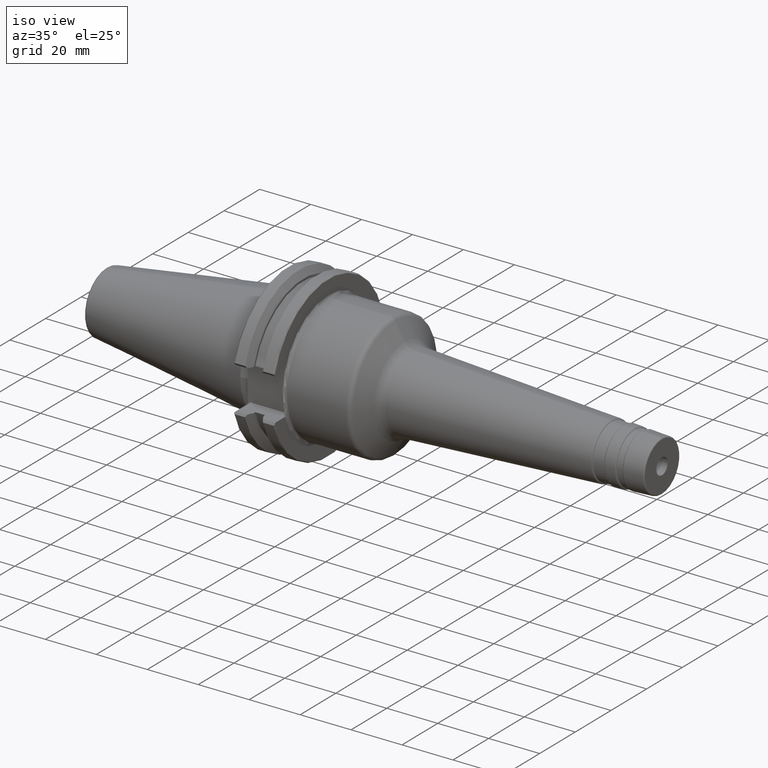
[diagram: clean part render]
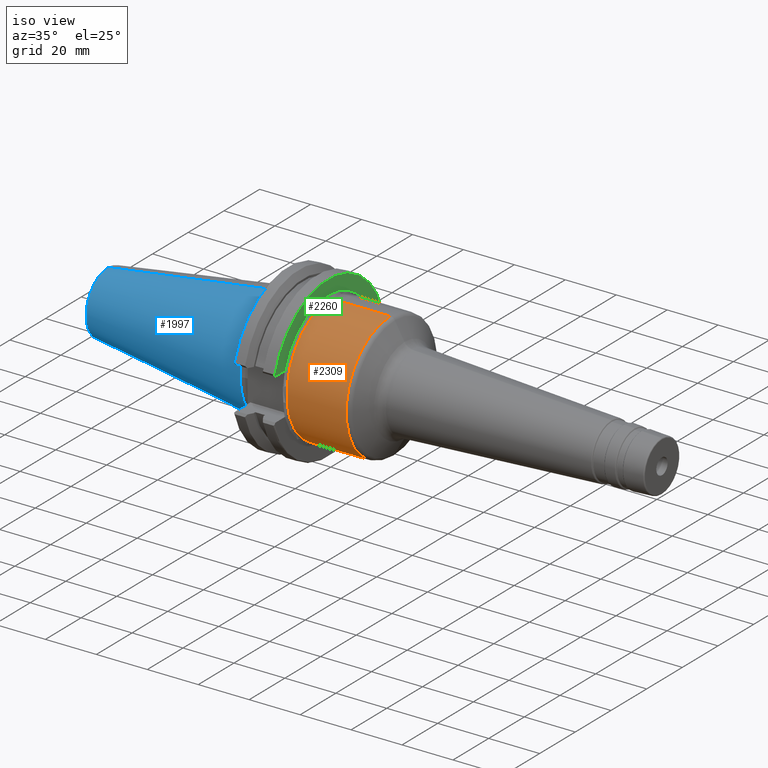
[diagram: same view with three faces highlighted in distinct colors, each labeled with its STEP entity id]
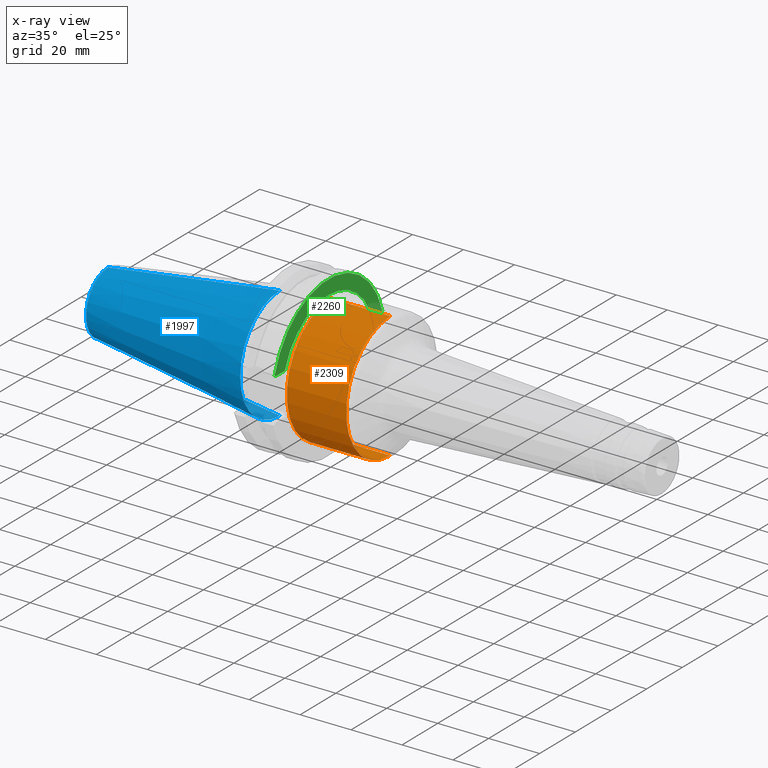
[diagram: x-ray of the same camera — body ghosted, the three highlighted faces saturated]
A machine part, iso view with three faces highlighted in distinct colors.
The next image is the same camera in x-ray (body ghosted, the three faces saturated) — at least one of them is partly hidden behind the body in this view.
Their STEP definitions:

[orange] entity #2309 — the highlighted cylindrical surface (partial cylindrical patch) has radius 24.75 mm, axis along (1, 0, 0).
#240=CARTESIAN_POINT('',(2.0075E1,0.E0,0.E0));
#241=DIRECTION('',(-1.E0,0.E0,0.E0));
#242=DIRECTION('',(0.E0,0.E0,-1.E0));
#243=AXIS2_PLACEMENT_3D('',#240,#241,#242);
#250=DIRECTION('',(-1.E0,0.E0,0.E0));
#251=VECTOR('',#250,2.330514753874E1);
#252=CARTESIAN_POINT('',(4.338014753874E1,0.E0,-2.475E1));
#253=LINE('',#252,#251);
#254=DIRECTION('',(-1.E0,0.E0,0.E0));
#255=VECTOR('',#254,2.330514753874E1);
#256=CARTESIAN_POINT('',(4.338014753874E1,0.E0,2.475E1));
#257=LINE('',#256,#255);
#258=CARTESIAN_POINT('',(4.338014753874E1,0.E0,0.E0));
#259=DIRECTION('',(-1.E0,0.E0,0.E0));
#260=DIRECTION('',(0.E0,0.E0,-1.E0));
#261=AXIS2_PLACEMENT_3D('',#258,#259,#260);
#1816=CARTESIAN_POINT('',(4.338014753874E1,0.E0,-2.475E1));
#1817=VERTEX_POINT('',#1816);
#1818=CARTESIAN_POINT('',(2.0075E1,0.E0,-2.475E1));
#1819=VERTEX_POINT('',#1818);
#1872=CARTESIAN_POINT('',(4.338014753874E1,0.E0,2.475E1));
#1873=VERTEX_POINT('',#1872);
#1874=CARTESIAN_POINT('',(2.0075E1,0.E0,2.475E1));
#1875=VERTEX_POINT('',#1874);
#2295=CARTESIAN_POINT('',(1.25275E1,0.E0,0.E0));
#2296=DIRECTION('',(1.E0,0.E0,0.E0));
#2297=DIRECTION('',(0.E0,0.E0,1.E0));
#2298=AXIS2_PLACEMENT_3D('',#2295,#2296,#2297);
#2299=CYLINDRICAL_SURFACE('',#2298,2.475E1);
#2301=ORIENTED_EDGE('',*,*,#2300,.T.);
#2302=ORIENTED_EDGE('',*,*,#2286,.T.);
#2304=ORIENTED_EDGE('',*,*,#2303,.F.);
#2306=ORIENTED_EDGE('',*,*,#2305,.F.);
#2307=EDGE_LOOP('',(#2301,#2302,#2304,#2306));
#2308=FACE_OUTER_BOUND('',#2307,.F.);
#2309=ADVANCED_FACE('',(#2308),#2299,.T.);
#244=CIRCLE('',#243,2.475E1);
#262=CIRCLE('',#261,2.475E1);
#2286=EDGE_CURVE('',#1819,#1875,#244,.T.);
#2300=EDGE_CURVE('',#1817,#1819,#253,.T.);
#2303=EDGE_CURVE('',#1873,#1875,#257,.T.);
#2305=EDGE_CURVE('',#1817,#1873,#262,.T.);

[blue] entity #1997 — the highlighted conical surface has half-angle 8.297 deg.
#47=CARTESIAN_POINT('',(-6.739430689359E1,0.E0,0.E0));
#48=DIRECTION('',(-1.E0,0.E0,0.E0));
#49=DIRECTION('',(0.E0,0.E0,-1.E0));
#50=AXIS2_PLACEMENT_3D('',#47,#48,#49);
#52=DIRECTION('',(-9.895329809873E-1,-1.311327178365E-12,-1.443068935927E-1));
#53=VECTOR('',#52,6.810718610546E1);
#54=CARTESIAN_POINT('',(0.E0,0.E0,2.2225E1));
#55=LINE('',#54,#53);
#56=CARTESIAN_POINT('',(2.557953848736E-13,0.E0,0.E0));
#57=DIRECTION('',(1.E0,0.E0,0.E0));
#58=DIRECTION('',(0.E0,0.E0,1.E0));
#59=AXIS2_PLACEMENT_3D('',#56,#57,#58);
#61=CARTESIAN_POINT('',(-2.842170943040E-14,0.E0,0.E0));
#62=DIRECTION('',(1.E0,0.E0,0.E0));
#63=DIRECTION('',(0.E0,-1.E0,0.E0));
#64=AXIS2_PLACEMENT_3D('',#61,#62,#63);
#66=DIRECTION('',(-9.895329809873E-1,1.311286176267E-12,1.443068935927E-1));
#67=VECTOR('',#66,6.810718610546E1);
#68=CARTESIAN_POINT('',(0.E0,0.E0,-2.2225E1));
#69=LINE('',#68,#67);
#1620=CARTESIAN_POINT('',(-6.739430689359E1,0.E0,-1.239666354178E1));
#1621=CARTESIAN_POINT('',(-6.739430689359E1,0.E0,1.239666354178E1));
#1622=VERTEX_POINT('',#1620);
#1623=VERTEX_POINT('',#1621);
#1636=CARTESIAN_POINT('',(0.E0,-2.2225E1,-1.633863832385E-8));
#1637=VERTEX_POINT('',#1636);
#1640=CARTESIAN_POINT('',(2.557953848736E-13,0.E0,2.2225E1));
#1641=VERTEX_POINT('',#1640);
#1642=CARTESIAN_POINT('',(-2.842170943040E-14,0.E0,-2.2225E1));
#1643=VERTEX_POINT('',#1642);
#1983=CARTESIAN_POINT('',(-3.369715344680E1,0.E0,0.E0));
#1984=DIRECTION('',(1.E0,0.E0,0.E0));
#1985=DIRECTION('',(0.E0,0.E0,1.E0));
#1986=AXIS2_PLACEMENT_3D('',#1983,#1984,#1985);
#1987=CONICAL_SURFACE('',#1986,1.731083177089E1,8.297145E0);
#1988=ORIENTED_EDGE('',*,*,#1977,.T.);
#1989=ORIENTED_EDGE('',*,*,#1933,.F.);
#1991=ORIENTED_EDGE('',*,*,#1990,.T.);
#1993=ORIENTED_EDGE('',*,*,#1992,.T.);
#1994=ORIENTED_EDGE('',*,*,#1927,.T.);
#1995=EDGE_LOOP('',(#1988,#1989,#1991,#1993,#1994));
#1996=FACE_OUTER_BOUND('',#1995,.F.);
#1997=ADVANCED_FACE('',(#1996),#1987,.T.);
#51=CIRCLE('',#50,1.239666354178E1);
#60=CIRCLE('',#59,2.2225E1);
#65=CIRCLE('',#64,2.2225E1);
#1927=EDGE_CURVE('',#1643,#1622,#69,.T.);
#1933=EDGE_CURVE('',#1641,#1623,#55,.T.);
#1977=EDGE_CURVE('',#1622,#1623,#51,.T.);
#1990=EDGE_CURVE('',#1641,#1637,#60,.T.);
#1992=EDGE_CURVE('',#1637,#1643,#65,.T.);

[green] entity #2260 — the highlighted planar face has unit normal (-1, 0, 0).
#160=DIRECTION('',(0.E0,4.147710182689E-10,-1.E0));
#161=VECTOR('',#160,1.520518662928E0);
#162=CARTESIAN_POINT('',(1.9075E1,2.5E1,7.69E0));
#163=LINE('',#162,#161);
#220=CARTESIAN_POINT('',(1.9075E1,0.E0,0.E0));
#221=DIRECTION('',(1.E0,0.E0,0.E0));
#222=DIRECTION('',(0.E0,9.708737864078E-1,2.395915083350E-1));
#223=AXIS2_PLACEMENT_3D('',#220,#221,#222);
#225=CARTESIAN_POINT('',(1.9075E1,0.E0,0.E0));
#226=DIRECTION('',(1.E0,0.E0,0.E0));
#227=DIRECTION('',(0.E0,0.E0,1.E0));
#228=AXIS2_PLACEMENT_3D('',#225,#226,#227);
#1204=DIRECTION('',(0.E0,1.E0,0.E0));
#1205=VECTOR('',#1204,5.337300081787E0);
#1206=CARTESIAN_POINT('',(1.9075E1,-2.975013277281E1,8.19E0));
#1207=LINE('',#1206,#1205);
#1306=DIRECTION('',(0.E0,1.E0,0.E0));
#1307=VECTOR('',#1306,4.250132772813E0);
#1308=CARTESIAN_POINT('',(1.9075E1,2.55E1,8.19E0));
#1309=LINE('',#1308,#1307);
#1326=DIRECTION('',(0.E0,5.973640433790E-1,8.019701987468E-1));
#1327=VECTOR('',#1326,6.967374391763E-1);
#1328=CARTESIAN_POINT('',(1.9075E1,2.975013277281E1,8.19E0));
#1329=LINE('',#1328,#1327);
#1337=CARTESIAN_POINT('',(1.9075E1,0.E0,0.E0));
#1338=DIRECTION('',(1.E0,0.E0,0.E0));
#1339=DIRECTION('',(0.E0,9.604246720989E-1,2.785398521286E-1));
#1340=AXIS2_PLACEMENT_3D('',#1337,#1338,#1339);
#1359=DIRECTION('',(0.E0,5.973640433790E-1,-8.019701987468E-1));
#1360=VECTOR('',#1359,6.967374391763E-1);
#1361=CARTESIAN_POINT('',(1.9075E1,-3.016633866665E1,8.748762662571E0));
#1362=LINE('',#1361,#1360);
#1515=DIRECTION('',(0.E0,7.071067811865E-1,7.071067811865E-1));
#1516=VECTOR('',#1515,7.071067811865E-1);
#1517=CARTESIAN_POINT('',(1.9075E1,2.5E1,7.69E0));
#1518=LINE('',#1517,#1516);
#1732=CARTESIAN_POINT('',(1.9075E1,2.55E1,8.19E0));
#1733=CARTESIAN_POINT('',(1.9075E1,2.975013277281E1,8.19E0));
#1734=VERTEX_POINT('',#1732);
#1735=VERTEX_POINT('',#1733);
#1740=CARTESIAN_POINT('',(1.9075E1,3.016633866665E1,8.748762662570E0));
#1741=VERTEX_POINT('',#1740);
#1744=CARTESIAN_POINT('',(1.9075E1,-3.016633866665E1,8.748762662571E0));
#1745=CARTESIAN_POINT('',(1.9075E1,-2.975013277281E1,8.19E0));
#1746=VERTEX_POINT('',#1744);
#1747=VERTEX_POINT('',#1745);
#1752=CARTESIAN_POINT('',(1.9075E1,2.5E1,7.69E0));
#1753=VERTEX_POINT('',#1752);
#1880=CARTESIAN_POINT('',(1.9075E1,2.500000000063E1,6.169481337072E0));
#1882=VERTEX_POINT('',#1880);
#1889=CARTESIAN_POINT('',(1.9075E1,-2.441283269103E1,8.19E0));
#1891=VERTEX_POINT('',#1889);
#1902=CARTESIAN_POINT('',(1.9075E1,0.E0,2.575000002004E1));
#1903=VERTEX_POINT('',#1902);
#2236=CARTESIAN_POINT('',(1.9075E1,-5.E1,-5.E1));
#2237=DIRECTION('',(-1.E0,0.E0,0.E0));
#2238=DIRECTION('',(0.E0,0.E0,1.E0));
#2239=AXIS2_PLACEMENT_3D('',#2236,#2237,#2238);
#2240=PLANE('',#2239);
#2242=ORIENTED_EDGE('',*,*,#2241,.T.);
#2244=ORIENTED_EDGE('',*,*,#2243,.T.);
#2246=ORIENTED_EDGE('',*,*,#2245,.F.);
#2248=ORIENTED_EDGE('',*,*,#2247,.F.);
#2250=ORIENTED_EDGE('',*,*,#2249,.F.);
#2252=ORIENTED_EDGE('',*,*,#2251,.F.);
#2254=ORIENTED_EDGE('',*,*,#2253,.F.);
#2256=ORIENTED_EDGE('',*,*,#2255,.F.);
#2257=ORIENTED_EDGE('',*,*,#2136,.T.);
#2258=EDGE_LOOP('',(#2242,#2244,#2246,#2248,#2250,#2252,#2254,#2256,#2257));
#2259=FACE_OUTER_BOUND('',#2258,.F.);
#2260=ADVANCED_FACE('',(#2259),#2240,.F.);
#224=CIRCLE('',#223,2.575000002004E1);
#229=CIRCLE('',#228,2.575000002296E1);
#1341=CIRCLE('',#1340,3.140937498068E1);
#2136=EDGE_CURVE('',#1753,#1882,#163,.T.);
#2241=EDGE_CURVE('',#1882,#1903,#224,.T.);
#2243=EDGE_CURVE('',#1903,#1891,#229,.T.);
#2245=EDGE_CURVE('',#1747,#1891,#1207,.T.);
#2247=EDGE_CURVE('',#1746,#1747,#1362,.T.);
#2249=EDGE_CURVE('',#1741,#1746,#1341,.T.);
#2251=EDGE_CURVE('',#1735,#1741,#1329,.T.);
#2253=EDGE_CURVE('',#1734,#1735,#1309,.T.);
#2255=EDGE_CURVE('',#1753,#1734,#1518,.T.);